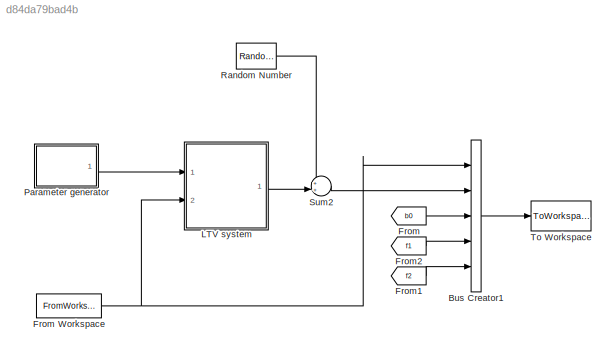
MODEL slx_d84da79bad4b
KIND model
BLOCK [BusCreator] Bus Creator1
  DisplayOption = bar
  Inputs = 5
  Ports = [5, 1]
BLOCK [From] From
  GotoTag = b0
  TagVisibility = global
BLOCK [FromWorkspace] From Workspace
  SampleTime = Ts
  VariableName = udata
  ZeroCross = on
BLOCK [From] From1
  GotoTag = f2
  TagVisibility = global
BLOCK [From] From2
  GotoTag = f1
  TagVisibility = global
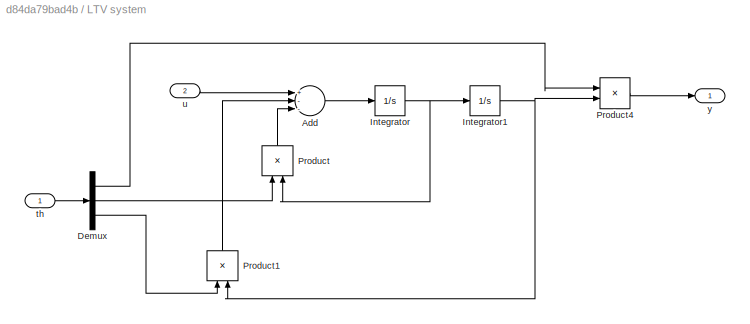
BLOCK [SubSystem] LTV system
  Ports = [2, 1]
  RequestExecContextInheritance = off
BLOCK [Sum] LTV system/Add
  InputSameDT = off
  Inputs = +--
  OutDataTypeStr = Inherit: Inherit via internal rule
  Ports = [3, 1]
  SaturateOnIntegerOverflow = off
BLOCK [Demux] LTV system/Demux
  DisplayOption = bar
  Outputs = 3
  Ports = [1, 3]
BLOCK [Integrator] LTV system/Integrator
  Ports = [1, 1]
BLOCK [Integrator] LTV system/Integrator1
  Ports = [1, 1]
BLOCK [Product] LTV system/Product
  InputSameDT = off
  OutDataTypeStr = Inherit: Inherit via internal rule
  Ports = [2, 1]
  RndMeth = Floor
  SaturateOnIntegerOverflow = off
BLOCK [Product] LTV system/Product1
  InputSameDT = off
  OutDataTypeStr = Inherit: Inherit via internal rule
  Ports = [2, 1]
  RndMeth = Floor
  SaturateOnIntegerOverflow = off
BLOCK [Product] LTV system/Product4
  InputSameDT = off
  OutDataTypeStr = Inherit: Inherit via internal rule
  Ports = [2, 1]
  SaturateOnIntegerOverflow = off
BLOCK [Inport] LTV system/th
  IconDisplay = Port number
BLOCK [Inport] LTV system/u
  IconDisplay = Port number
  Port = 2
BLOCK [Outport] LTV system/y
  IconDisplay = Port number
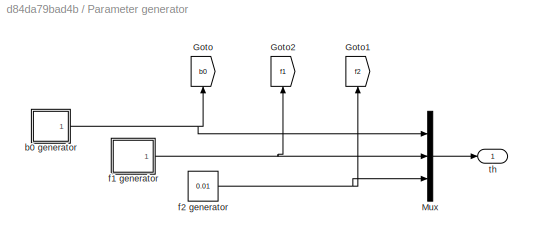
BLOCK [SubSystem] Parameter generator
  Ports = [0, 1]
  RequestExecContextInheritance = off
BLOCK [Goto] Parameter generator/Goto
  GotoTag = b0
  TagVisibility = global
BLOCK [Goto] Parameter generator/Goto1
  GotoTag = f2
  TagVisibility = global
BLOCK [Goto] Parameter generator/Goto2
  GotoTag = f1
  TagVisibility = global
BLOCK [Mux] Parameter generator/Mux
  DisplayOption = bar
  Inputs = 3
  Ports = [3, 1]
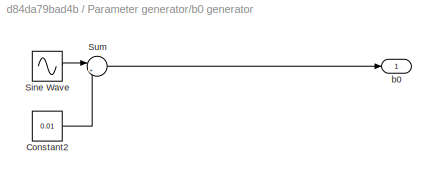
BLOCK [SubSystem] Parameter generator/b0 generator
  Ports = [0, 1]
  RequestExecContextInheritance = off
BLOCK [Constant] Parameter generator/b0 generator/Constant2
  Value = 0.01
BLOCK [Sin] Parameter generator/b0 generator/Sine Wave
  Amplitude = 0.008
  Frequency = 2*pi/(1e4/3)
  Ports = [0, 1]
  SampleTime = 0
BLOCK [Sum] Parameter generator/b0 generator/Sum
  IconShape = round
  InputSameDT = off
  Inputs = |++
  OutDataTypeStr = Inherit: Inherit via internal rule
  Ports = [2, 1]
  SaturateOnIntegerOverflow = off
BLOCK [Outport] Parameter generator/b0 generator/b0
  IconDisplay = Port number
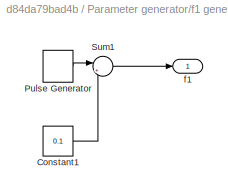
BLOCK [SubSystem] Parameter generator/f1 generator
  Ports = [0, 1]
  RequestExecContextInheritance = off
BLOCK [Constant] Parameter generator/f1 generator/Constant1
  Value = 0.1
BLOCK [DiscretePulseGenerator] Parameter generator/f1 generator/Pulse Generator
  Amplitude = 0.09
  Period = 12000
  Ports = [0, 1]
  PulseType = Time based
  PulseWidth = 75
BLOCK [Sum] Parameter generator/f1 generator/Sum1
  IconShape = round
  InputSameDT = off
  Inputs = |++
  OutDataTypeStr = Inherit: Inherit via internal rule
  Ports = [2, 1]
  SaturateOnIntegerOverflow = off
BLOCK [Outport] Parameter generator/f1 generator/f1
  IconDisplay = Port number
BLOCK [Constant] Parameter generator/f2 generator
  Value = 0.01
BLOCK [Outport] Parameter generator/th
  IconDisplay = Port number
BLOCK [RandomNumber] Random Number
  SampleTime = 0
  Variance = varv
BLOCK [Sum] Sum2
  IconShape = round
  InputSameDT = off
  Inputs = ++|
  OutDataTypeStr = Inherit: Inherit via internal rule
  Ports = [2, 1]
  SaturateOnIntegerOverflow = off
BLOCK [ToWorkspace] To Workspace
  MaxDataPoints = inf
  Ports = [1]
  SampleTime = Ts
  VariableName = dataSim
LINE Bus Creator1:1 -> To Workspace:1
NET From Workspace:1 -> Bus Creator1:1, LTV system:2
LINE From1:1 -> Bus Creator1:5
LINE From2:1 -> Bus Creator1:4
LINE From:1 -> Bus Creator1:3
LINE LTV system/Add:1 -> LTV system/Integrator:1
LINE LTV system/Demux:1 -> LTV system/Product4:1
LINE LTV system/Demux:2 -> LTV system/Product:1
LINE LTV system/Demux:3 -> LTV system/Product1:1
NET LTV system/Integrator1:1 -> LTV system/Product1:2, LTV system/Product4:2
NET LTV system/Integrator:1 -> LTV system/Integrator1:1, LTV system/Product:2
LINE LTV system/Product1:1 -> LTV system/Add:2
LINE LTV system/Product4:1 -> LTV system/y:1
LINE LTV system/Product:1 -> LTV system/Add:3
LINE LTV system/th:1 -> LTV system/Demux:1
LINE LTV system/u:1 -> LTV system/Add:1
LINE LTV system:1 -> Sum2:2
LINE Parameter generator/Mux:1 -> Parameter generator/th:1
LINE Parameter generator/b0 generator/Constant2:1 -> Parameter generator/b0 generator/Sum:2
LINE Parameter generator/b0 generator/Sine Wave:1 -> Parameter generator/b0 generator/Sum:1
LINE Parameter generator/b0 generator/Sum:1 -> Parameter generator/b0 generator/b0:1
NET Parameter generator/b0 generator:1 -> Parameter generator/Goto:1, Parameter generator/Mux:1
LINE Parameter generator/f1 generator/Constant1:1 -> Parameter generator/f1 generator/Sum1:2
LINE Parameter generator/f1 generator/Pulse Generator:1 -> Parameter generator/f1 generator/Sum1:1
LINE Parameter generator/f1 generator/Sum1:1 -> Parameter generator/f1 generator/f1:1
NET Parameter generator/f1 generator:1 -> Parameter generator/Goto2:1, Parameter generator/Mux:2
NET Parameter generator/f2 generator:1 -> Parameter generator/Goto1:1, Parameter generator/Mux:3
LINE Parameter generator:1 -> LTV system:1
LINE Random Number:1 -> Sum2:1
LINE Sum2:1 -> Bus Creator1:2
note: NET lines group one-source signal fan-out (src -> all destinations, sorted); 1:1 wires keep LINE
